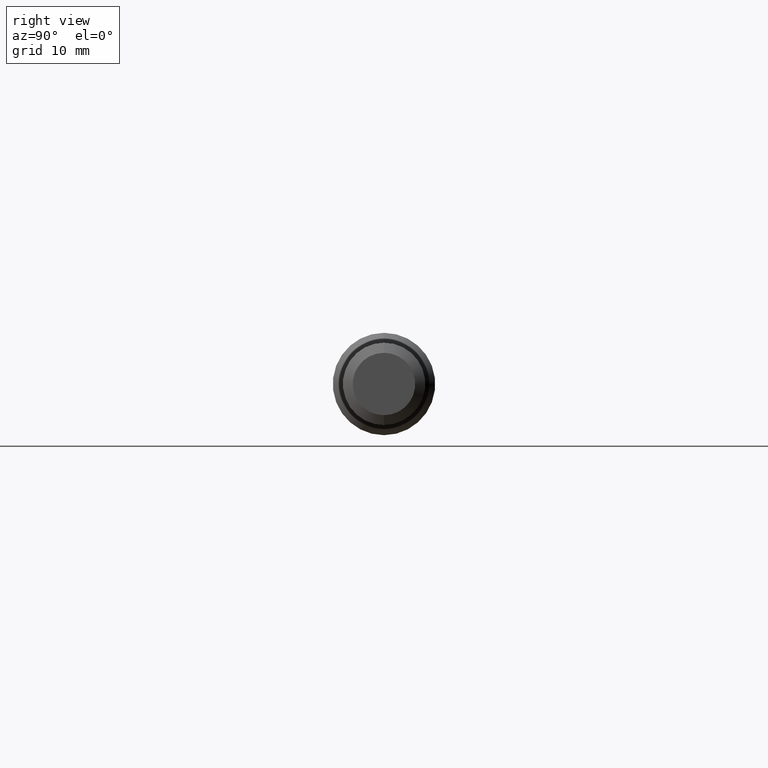
[diagram: clean part render]
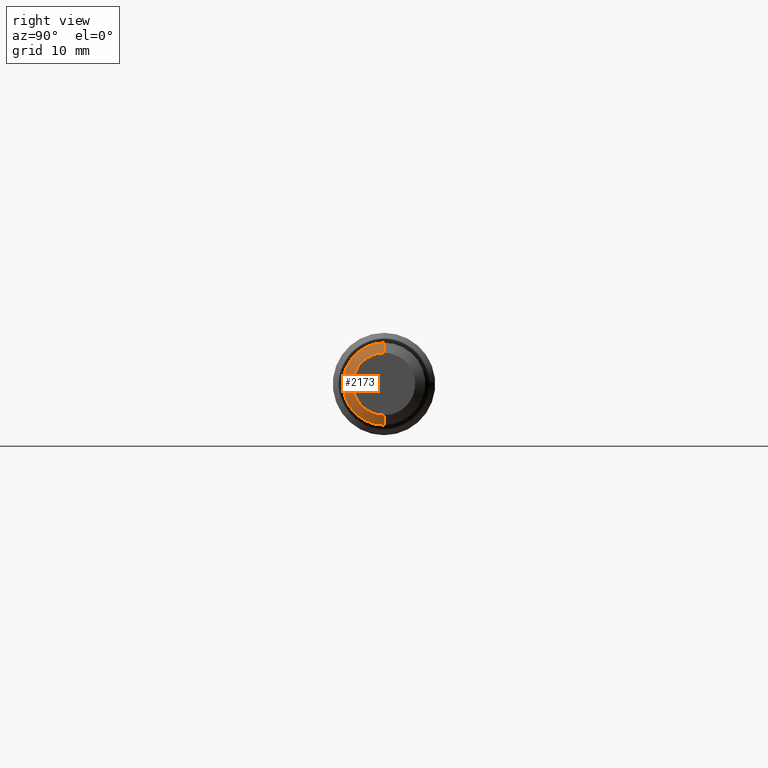
[diagram: same view with one face highlighted and labeled with its STEP entity id]
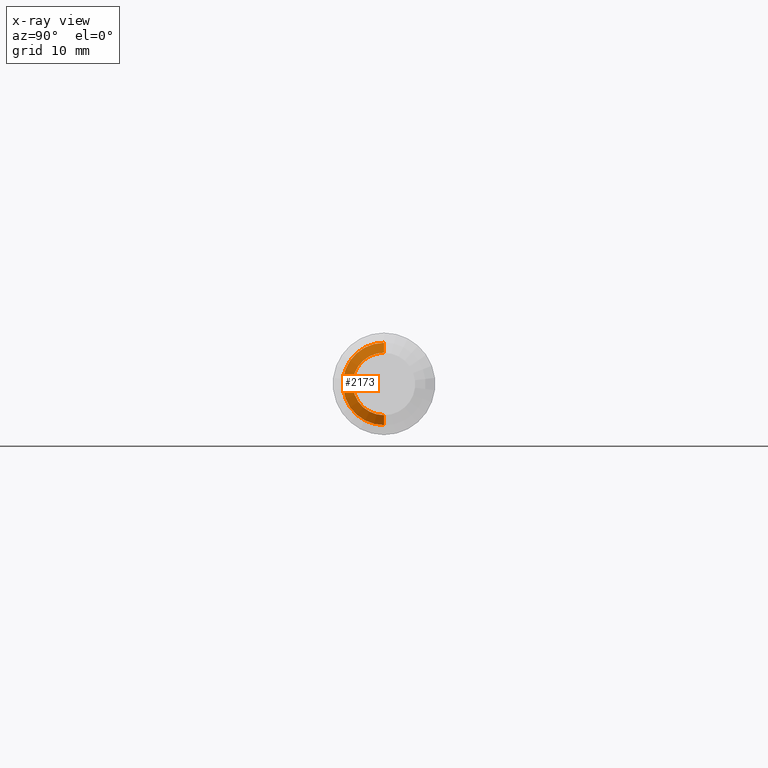
[diagram: x-ray of the same camera — body ghosted, the highlighted face saturated]
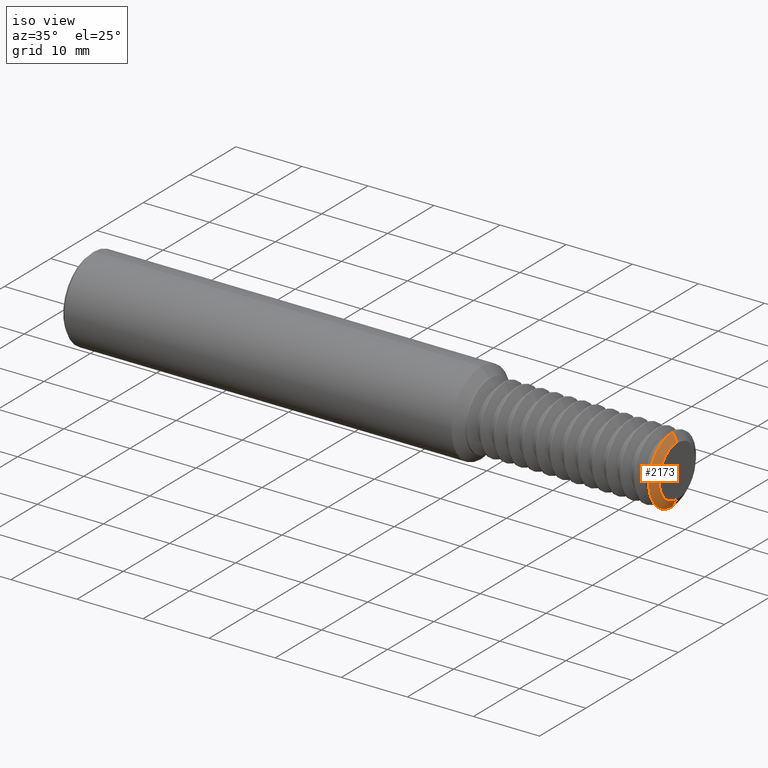
[diagram: same view with one face highlighted and labeled with its STEP entity id]
A machine part, right view. The second image highlights one B-rep face of the part: STEP entity #2173.
The next image is the same camera in x-ray: the body ghosted, the highlighted face saturated — about 0% of this face is hidden behind the body in this view.
A second angle (iso view) of the same face is appended — the face is thin or edge-on in the first view.
In plain terms, the highlighted conical surface has half-angle 60.2 deg.
Its self-contained STEP definition (entity closure, byte-faithful):
#18 = DIRECTION ( 'NONE',  ( -0.4969739610275644703, 0.0000000000000000000, 0.8677654533689231897 ) ) ;
#65 = VECTOR ( 'NONE', #576, 39.37007874015748143 ) ;
#207 = CARTESIAN_POINT ( 'NONE',  ( 3.496266666666666634, 0.0000000000000000000, 0.0000000000000000000 ) ) ;
#356 = VERTEX_POINT ( 'NONE', #2404 ) ;
#386 = CARTESIAN_POINT ( 'NONE',  ( 3.468449999999999811, 0.0000000000000000000, 0.2010000000000002340 ) ) ;
#417 = CARTESIAN_POINT ( 'NONE',  ( 3.496266666666666634, 1.866721302577512734E-17, -0.1524293619905099928 ) ) ;
#422 = DIRECTION ( 'NONE',  ( -1.000000000000000000, -0.0000000000000000000, -0.0000000000000000000 ) ) ;
#576 = DIRECTION ( 'NONE',  ( -0.4969739610275644703, 1.062706184878903627E-16, -0.8677654533689231897 ) ) ;
#672 = LINE ( 'NONE', #2891, #65 ) ;
#795 = LINE ( 'NONE', #1872, #2530 ) ;
#836 = VERTEX_POINT ( 'NONE', #417 ) ;
#870 = EDGE_CURVE ( 'NONE', #356, #2777, #795, .T. ) ;
#902 = DIRECTION ( 'NONE',  ( 0.0000000000000000000, 0.0000000000000000000, 1.000000000000000000 ) ) ;
#928 = EDGE_LOOP ( 'NONE', ( #1887, #1842, #1640, #1921 ) ) ;
#1341 = DIRECTION ( 'NONE',  ( 0.0000000000000000000, 0.0000000000000000000, 1.000000000000000000 ) ) ;
#1369 = DIRECTION ( 'NONE',  ( -1.000000000000000000, -0.0000000000000000000, -0.0000000000000000000 ) ) ;
#1442 = EDGE_CURVE ( 'NONE', #2004, #2777, #2420, .T. ) ;
#1640 = ORIENTED_EDGE ( 'NONE', *, *, #870, .T. ) ;
#1749 = DIRECTION ( 'NONE',  ( -1.000000000000000000, -0.0000000000000000000, -0.0000000000000000000 ) ) ;
#1752 = AXIS2_PLACEMENT_3D ( 'NONE', #2719, #1369, #1341 ) ;
#1842 = ORIENTED_EDGE ( 'NONE', *, *, #2816, .T. ) ;
#1872 = CARTESIAN_POINT ( 'NONE',  ( 3.466822996022891790, 0.0000000000000000000, 0.2038409090909092392 ) ) ;
#1887 = ORIENTED_EDGE ( 'NONE', *, *, #2605, .F. ) ;
#1921 = ORIENTED_EDGE ( 'NONE', *, *, #1442, .F. ) ;
#2004 = VERTEX_POINT ( 'NONE', #2801 ) ;
#2173 = ADVANCED_FACE ( 'NONE', ( #2483 ), #2241, .T. ) ;
#2195 = DIRECTION ( 'NONE',  ( 0.0000000000000000000, 0.0000000000000000000, 1.000000000000000000 ) ) ;
#2241 = CONICAL_SURFACE ( 'NONE', #2286, 0.2038409090909092392, 1.050688209700575859 ) ;
#2286 = AXIS2_PLACEMENT_3D ( 'NONE', #2427, #1749, #2195 ) ;
#2404 = CARTESIAN_POINT ( 'NONE',  ( 3.496266666666666634, 0.0000000000000000000, 0.1524293619905099928 ) ) ;
#2420 = CIRCLE ( 'NONE', #1752, 0.2010000000000002340 ) ;
#2427 = CARTESIAN_POINT ( 'NONE',  ( 3.466822996022891790, 0.0000000000000000000, 0.0000000000000000000 ) ) ;
#2483 = FACE_OUTER_BOUND ( 'NONE', #928, .T. ) ;
#2530 = VECTOR ( 'NONE', #18, 39.37007874015748143 ) ;
#2551 = CIRCLE ( 'NONE', #2652, 0.1524293619905099928 ) ;
#2605 = EDGE_CURVE ( 'NONE', #836, #2004, #672, .T. ) ;
#2652 = AXIS2_PLACEMENT_3D ( 'NONE', #207, #422, #902 ) ;
#2719 = CARTESIAN_POINT ( 'NONE',  ( 3.468449999999999811, 0.0000000000000000000, 0.0000000000000000000 ) ) ;
#2777 = VERTEX_POINT ( 'NONE', #386 ) ;
#2801 = CARTESIAN_POINT ( 'NONE',  ( 3.468449999999999811, 2.461540066286182816E-17, -0.2010000000000002340 ) ) ;
#2816 = EDGE_CURVE ( 'NONE', #836, #356, #2551, .T. ) ;
#2891 = CARTESIAN_POINT ( 'NONE',  ( 3.466822996022891790, 2.496331168534686335E-17, -0.2038409090909092392 ) ) ;